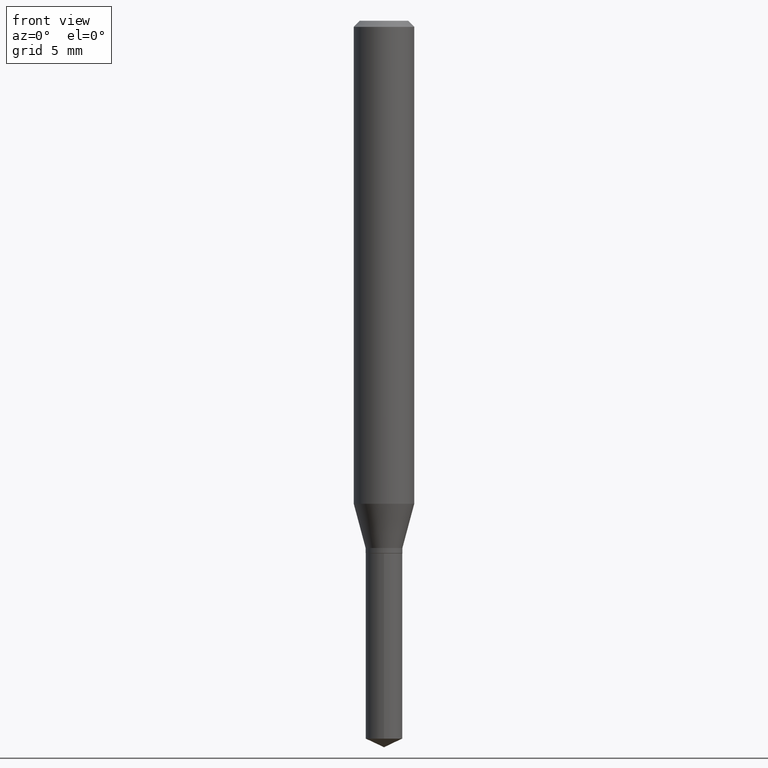
[diagram: clean part render]
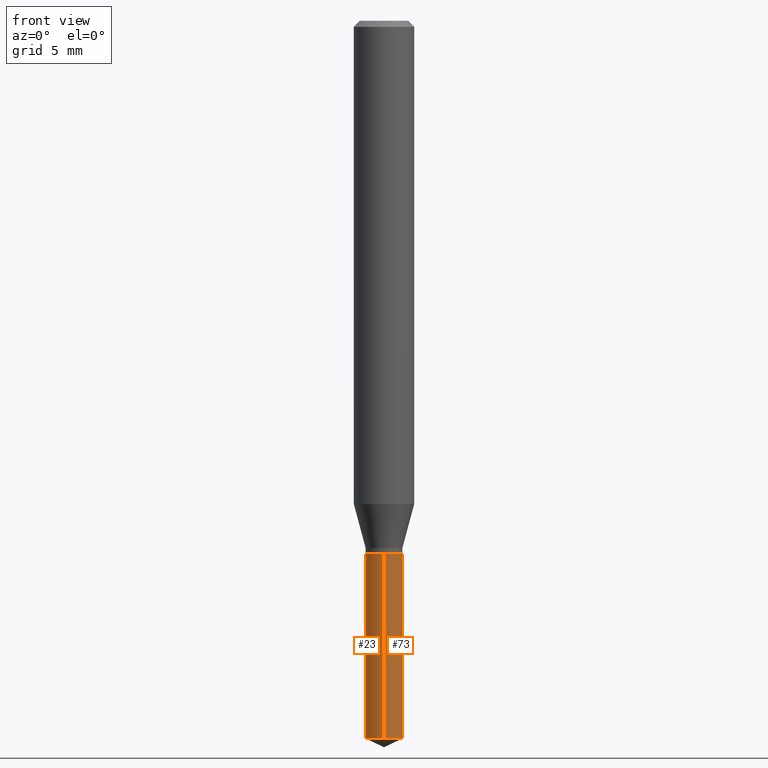
[diagram: same view with one multi-face feature highlighted, each face labeled with its STEP entity id]
A machine part, front view. The highlighted faces form ONE feature: a constant-radius fillet chain: 2 tangent blend faces with common blend radius 0.9652 mm. The faces share edges in the B-rep.
Their STEP definitions:
[1] entity #73 (Cylinder):
#31 = CIRCLE ( 'NONE', #285, 0.03800000000000000600 ) ;
#48 = LINE ( 'NONE', #201, #160 ) ;
#58 = DIRECTION ( 'NONE',  ( -2.445399690415121810E-29, 3.491580316559632610E-15, 1.000000000000000000 ) ) ;
#60 = VERTEX_POINT ( 'NONE', #486 ) ;
#66 = EDGE_LOOP ( 'NONE', ( #394, #99, #234, #149 ) ) ;
#73 = ADVANCED_FACE ( 'NONE', ( #423 ), #226, .T. ) ;
#74 = CARTESIAN_POINT ( 'NONE',  ( -2.653525817520512368E-16, -0.03800000000000384320, -1.099999999999999867 ) ) ;
#78 = CARTESIAN_POINT ( 'NONE',  ( 2.690015686803650369E-29, -3.840629472727460101E-15, -1.100000000000000089 ) ) ;
#82 = CARTESIAN_POINT ( 'NONE',  ( 2.690015686803650369E-29, -3.840629472727460101E-15, -1.100000000000000089 ) ) ;
#91 = EDGE_CURVE ( 'NONE', #165, #218, #118, .T. ) ;
#99 = ORIENTED_EDGE ( 'NONE', *, *, #164, .T. ) ;
#118 = LINE ( 'NONE', #74, #335 ) ;
#120 = CIRCLE ( 'NONE', #363, 0.03800000000000000600 ) ;
#124 = DIRECTION ( 'NONE',  ( -2.445399690415121530E-29, 3.491580316559632610E-15, 1.000000000000000000 ) ) ;
#128 = VERTEX_POINT ( 'NONE', #284 ) ;
#141 = DIRECTION ( 'NONE',  ( -6.982962677686265922E-15, -1.000000000000000000, 0.000000000000000000 ) ) ;
#149 = ORIENTED_EDGE ( 'NONE', *, *, #91, .F. ) ;
#159 = EDGE_CURVE ( 'NONE', #165, #60, #120, .T. ) ;
#160 = VECTOR ( 'NONE', #58, 39.37007874015748143 ) ;
#164 = EDGE_CURVE ( 'NONE', #60, #128, #48, .T. ) ;
#165 = VERTEX_POINT ( 'NONE', #351 ) ;
#201 = CARTESIAN_POINT ( 'NONE',  ( 2.700062395888649838E-16, 0.03799999999999616185, -1.100000000000000089 ) ) ;
#218 = VERTEX_POINT ( 'NONE', #371 ) ;
#226 = CYLINDRICAL_SURFACE ( 'NONE', #405, 0.03800000000000000600 ) ;
#230 = DIRECTION ( 'NONE',  ( -2.445399690415121530E-29, 3.491580316559632610E-15, 1.000000000000000000 ) ) ;
#234 = ORIENTED_EDGE ( 'NONE', *, *, #316, .F. ) ;
#278 = DIRECTION ( 'NONE',  ( -6.982962677686265133E-15, -1.000000000000000000, 3.594536833768767206E-15 ) ) ;
#284 = CARTESIAN_POINT ( 'NONE',  ( 2.700062395888743515E-16, 0.03799999999999616185, -1.100000000000000089 ) ) ;
#285 = AXIS2_PLACEMENT_3D ( 'NONE', #82, #124, #278 ) ;
#292 = CARTESIAN_POINT ( 'NONE',  ( 3.624843836059862325E-29, -5.175391875005663556E-15, -1.482280308990110207 ) ) ;
#316 = EDGE_CURVE ( 'NONE', #218, #128, #31, .T. ) ;
#335 = VECTOR ( 'NONE', #374, 39.37007874015748143 ) ;
#351 = CARTESIAN_POINT ( 'NONE',  ( -2.653525817520419677E-16, -0.03800000000000519629, -1.482280308990110207 ) ) ;
#363 = AXIS2_PLACEMENT_3D ( 'NONE', #292, #412, #141 ) ;
#371 = CARTESIAN_POINT ( 'NONE',  ( -2.653525817520512368E-16, -0.03800000000000384320, -1.099999999999999867 ) ) ;
#374 = DIRECTION ( 'NONE',  ( -2.445399690415121810E-29, 3.491580316559632610E-15, 1.000000000000000000 ) ) ;
#394 = ORIENTED_EDGE ( 'NONE', *, *, #159, .T. ) ;
#405 = AXIS2_PLACEMENT_3D ( 'NONE', #78, #230, #487 ) ;
#412 = DIRECTION ( 'NONE',  ( -2.445399690415121530E-29, 3.491580316559632610E-15, 1.000000000000000000 ) ) ;
#423 = FACE_OUTER_BOUND ( 'NONE', #66, .T. ) ;
#486 = CARTESIAN_POINT ( 'NONE',  ( 2.700062395888744008E-16, 0.03799999999999484346, -1.482280308990110207 ) ) ;
#487 = DIRECTION ( 'NONE',  ( -6.982962677686265133E-15, -1.000000000000000000, 3.594536833768767206E-15 ) ) ;
[2] entity #23 (Cylinder):
#23 = ADVANCED_FACE ( 'NONE', ( #248 ), #28, .T. ) ;
#28 = CYLINDRICAL_SURFACE ( 'NONE', #169, 0.03800000000000000600 ) ;
#30 = DIRECTION ( 'NONE',  ( -2.445399690415121530E-29, 3.491580316559632610E-15, 1.000000000000000000 ) ) ;
#48 = LINE ( 'NONE', #201, #160 ) ;
#58 = DIRECTION ( 'NONE',  ( -2.445399690415121810E-29, 3.491580316559632610E-15, 1.000000000000000000 ) ) ;
#60 = VERTEX_POINT ( 'NONE', #486 ) ;
#74 = CARTESIAN_POINT ( 'NONE',  ( -2.653525817520512368E-16, -0.03800000000000384320, -1.099999999999999867 ) ) ;
#90 = CARTESIAN_POINT ( 'NONE',  ( 3.624843836059862325E-29, -5.175391875005663556E-15, -1.482280308990110207 ) ) ;
#91 = EDGE_CURVE ( 'NONE', #165, #218, #118, .T. ) ;
#118 = LINE ( 'NONE', #74, #335 ) ;
#128 = VERTEX_POINT ( 'NONE', #284 ) ;
#132 = ORIENTED_EDGE ( 'NONE', *, *, #91, .T. ) ;
#160 = VECTOR ( 'NONE', #58, 39.37007874015748143 ) ;
#164 = EDGE_CURVE ( 'NONE', #60, #128, #48, .T. ) ;
#165 = VERTEX_POINT ( 'NONE', #351 ) ;
#169 = AXIS2_PLACEMENT_3D ( 'NONE', #411, #400, #253 ) ;
#174 = ORIENTED_EDGE ( 'NONE', *, *, #277, .F. ) ;
#201 = CARTESIAN_POINT ( 'NONE',  ( 2.700062395888649838E-16, 0.03799999999999616185, -1.100000000000000089 ) ) ;
#212 = ORIENTED_EDGE ( 'NONE', *, *, #435, .T. ) ;
#218 = VERTEX_POINT ( 'NONE', #371 ) ;
#242 = DIRECTION ( 'NONE',  ( -2.445399690415121530E-29, 3.491580316559632610E-15, 1.000000000000000000 ) ) ;
#246 = AXIS2_PLACEMENT_3D ( 'NONE', #90, #242, #358 ) ;
#248 = FACE_OUTER_BOUND ( 'NONE', #356, .T. ) ;
#253 = DIRECTION ( 'NONE',  ( -6.982962677686265133E-15, -1.000000000000000000, 3.594536833768767206E-15 ) ) ;
#267 = AXIS2_PLACEMENT_3D ( 'NONE', #268, #30, #410 ) ;
#268 = CARTESIAN_POINT ( 'NONE',  ( 2.690015686803650369E-29, -3.840629472727460101E-15, -1.100000000000000089 ) ) ;
#277 = EDGE_CURVE ( 'NONE', #128, #218, #377, .T. ) ;
#279 = CIRCLE ( 'NONE', #246, 0.03800000000000000600 ) ;
#284 = CARTESIAN_POINT ( 'NONE',  ( 2.700062395888743515E-16, 0.03799999999999616185, -1.100000000000000089 ) ) ;
#297 = ORIENTED_EDGE ( 'NONE', *, *, #164, .F. ) ;
#335 = VECTOR ( 'NONE', #374, 39.37007874015748143 ) ;
#351 = CARTESIAN_POINT ( 'NONE',  ( -2.653525817520419677E-16, -0.03800000000000519629, -1.482280308990110207 ) ) ;
#356 = EDGE_LOOP ( 'NONE', ( #297, #212, #132, #174 ) ) ;
#358 = DIRECTION ( 'NONE',  ( -6.982962677686265922E-15, -1.000000000000000000, 0.000000000000000000 ) ) ;
#371 = CARTESIAN_POINT ( 'NONE',  ( -2.653525817520512368E-16, -0.03800000000000384320, -1.099999999999999867 ) ) ;
#374 = DIRECTION ( 'NONE',  ( -2.445399690415121810E-29, 3.491580316559632610E-15, 1.000000000000000000 ) ) ;
#377 = CIRCLE ( 'NONE', #267, 0.03800000000000000600 ) ;
#400 = DIRECTION ( 'NONE',  ( -2.445399690415121530E-29, 3.491580316559632610E-15, 1.000000000000000000 ) ) ;
#410 = DIRECTION ( 'NONE',  ( -6.982962677686265133E-15, -1.000000000000000000, 3.594536833768767206E-15 ) ) ;
#411 = CARTESIAN_POINT ( 'NONE',  ( 2.690015686803650369E-29, -3.840629472727460101E-15, -1.100000000000000089 ) ) ;
#435 = EDGE_CURVE ( 'NONE', #60, #165, #279, .T. ) ;
#486 = CARTESIAN_POINT ( 'NONE',  ( 2.700062395888744008E-16, 0.03799999999999484346, -1.482280308990110207 ) ) ;